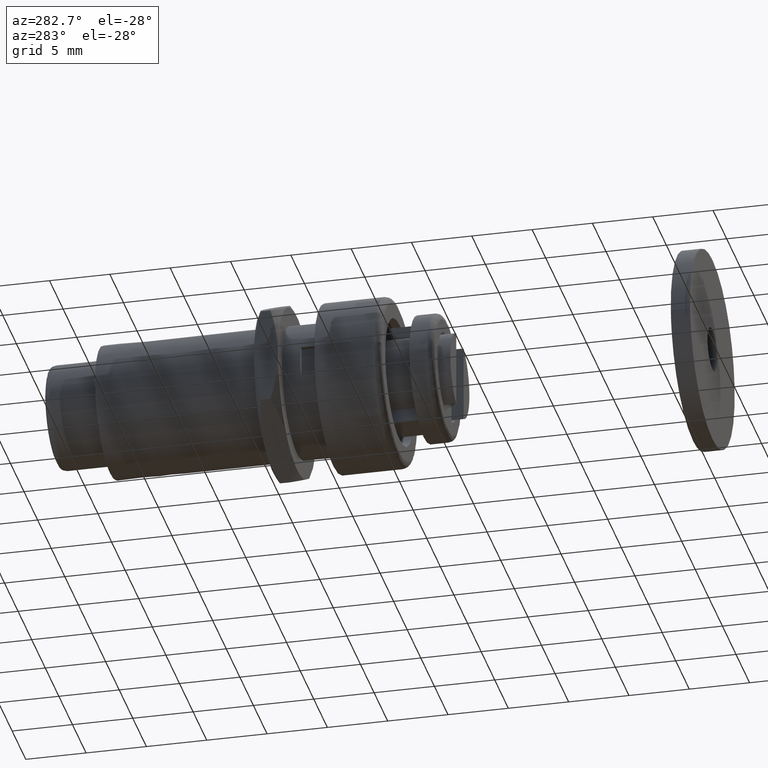
[diagram: clean part render]
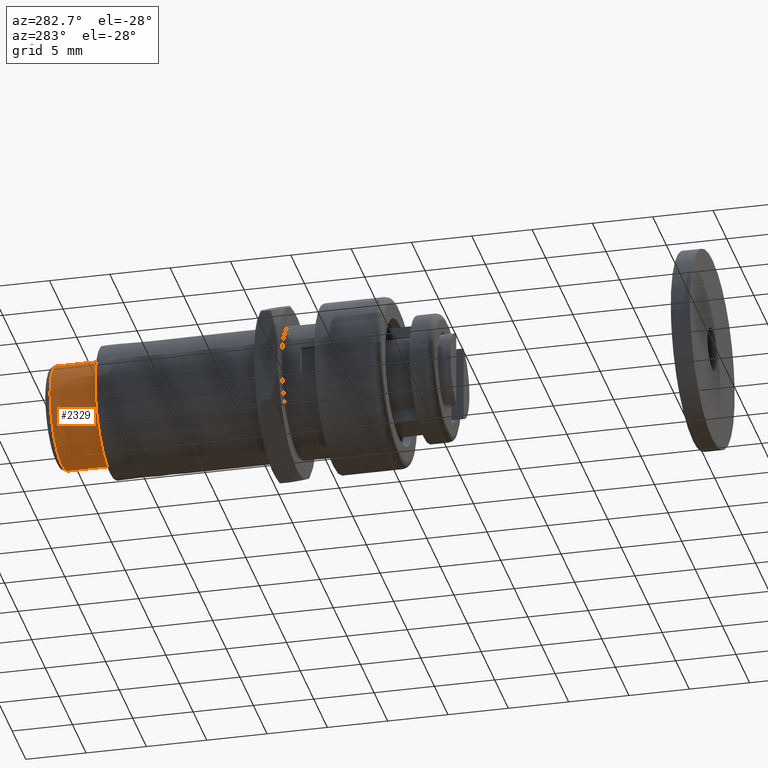
[diagram: same view with one face highlighted and labeled with its STEP entity id]
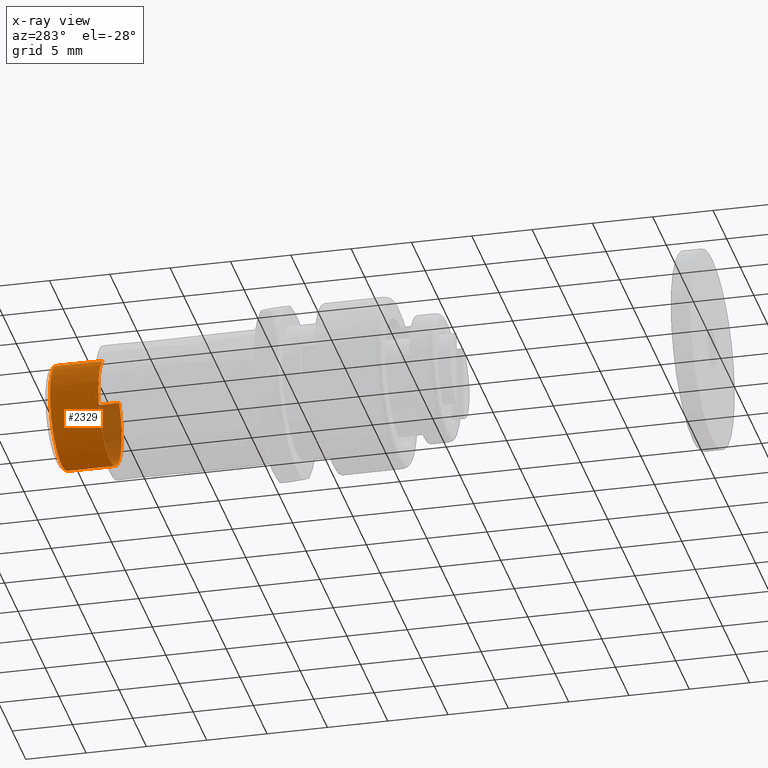
[diagram: x-ray of the same camera — body ghosted, the highlighted face saturated]
A machine part, auxiliary view. The second image highlights one B-rep face of the part: STEP entity #2329.
The next image is the same camera in x-ray: the body ghosted, the highlighted face saturated — about 16% of this face is hidden behind the body in this view.
In plain terms, the highlighted face is a freeform B-spline surface patch.
Its self-contained STEP definition (entity closure, byte-faithful):
#2195=CARTESIAN_POINT('',(-2.676814805085674,28.100000000129249,3.365217422289847));
#2196=CARTESIAN_POINT('',(-6.042032227375525,28.100000000129249,0.688402617204174));
#2197=CARTESIAN_POINT('',(-3.365217422289849,28.100000000129249,-2.676814805085675));
#2198=CARTESIAN_POINT('',(-0.688402617204176,28.100000000129249,-6.042032227375525));
#2199=CARTESIAN_POINT('',(2.676814805085674,28.100000000129249,-3.365217422289851));
#2200=CARTESIAN_POINT('',(6.042032227375525,28.100000000129249,-0.688402617204178));
#2201=CARTESIAN_POINT('',(3.365217422289849,28.100000000129249,2.676814805085672));
#2202=CARTESIAN_POINT('',(-2.676814805085674,23.897499999996459,3.365217422289847));
#2203=CARTESIAN_POINT('',(-6.042032227375525,23.897499999996448,0.688402617204174));
#2204=CARTESIAN_POINT('',(-3.365217422289849,23.897499999996459,-2.676814805085675));
#2205=CARTESIAN_POINT('',(-0.688402617204176,23.897499999996448,-6.042032227375525));
#2206=CARTESIAN_POINT('',(2.676814805085674,23.897499999996459,-3.365217422289851));
#2207=CARTESIAN_POINT('',(6.042032227375525,23.897499999996448,-0.688402617204178));
#2208=CARTESIAN_POINT('',(3.365217422289849,23.897499999996459,2.676814805085672));
#2216=(BOUNDED_SURFACE()B_SPLINE_SURFACE(2,1,((#2195,#2202),(#2196,#2203),(#2197,#2204),(#2198,#2205),(#2199,#2206),(#2200,#2207),(#2201,#2208)),.UNSPECIFIED.,.F.,.F.,.U.)B_SPLINE_SURFACE_WITH_KNOTS((3,2,2,3),(2,2),(0.0,7.124478243379981,14.248956486759960,21.373434730139952),(0.0,4.202500000132802),.UNSPECIFIED.)GEOMETRIC_REPRESENTATION_ITEM()RATIONAL_B_SPLINE_SURFACE(((1.0,1.0),(0.707106781186548,0.707106781186548),(1.0,1.0),(0.707106781186548,0.707106781186548),(1.0,1.0),(0.707106781186548,0.707106781186548),(1.0,1.0)))REPRESENTATION_ITEM('')SURFACE());
#2217=CARTESIAN_POINT('',(-2.676812412318736,28.000000000021359,3.365219325579831));
#2218=VERTEX_POINT('',#2217);
#2219=CARTESIAN_POINT('',(-4.300002999999999,28.000000000098868,2.444794E-015));
#2220=VERTEX_POINT('',#2219);
#2221=CARTESIAN_POINT('',(-2.676812412318736,28.000000000021352,3.365219325579832));
#2222=CARTESIAN_POINT('',(-4.300002999999990,28.000000000051184,2.074077116918344));
#2223=CARTESIAN_POINT('',(-4.300003000000000,28.000000000098876,2.444794E-015));
#2231=(BOUNDED_CURVE()B_SPLINE_CURVE(2,(#2221,#2222,#2223),.UNSPECIFIED.,.F.,.U.)B_SPLINE_CURVE_WITH_KNOTS((3,3),(0.607863769759587,0.749999999999999),.UNSPECIFIED.)CURVE()GEOMETRIC_REPRESENTATION_ITEM()RATIONAL_B_SPLINE_CURVE((0.856305653217627,0.833477048059502,0.999999999999998))REPRESENTATION_ITEM(''));
#2232=EDGE_CURVE('',#2218,#2220,#2231,.T.);
#2233=ORIENTED_EDGE('',*,*,#2232,.T.);
#2234=CARTESIAN_POINT('',(0.0,28.0,-4.300003000000002));
#2235=VERTEX_POINT('',#2234);
#2236=CARTESIAN_POINT('',(-4.300002999999999,28.000000000098868,2.444794E-015));
#2237=CARTESIAN_POINT('',(-4.300003000000009,28.0,-4.300003000000003));
#2238=CARTESIAN_POINT('',(0.0,28.0,-4.300003000000002));
#2246=(BOUNDED_CURVE()B_SPLINE_CURVE(2,(#2236,#2237,#2238),.UNSPECIFIED.,.F.,.U.)B_SPLINE_CURVE_WITH_KNOTS((3,3),(0.750000000000000,1.0),.UNSPECIFIED.)CURVE()GEOMETRIC_REPRESENTATION_ITEM()RATIONAL_B_SPLINE_CURVE((1.000000000000001,0.707106781186547,1.0))REPRESENTATION_ITEM(''));
#2247=EDGE_CURVE('',#2220,#2235,#2246,.T.);
#2248=ORIENTED_EDGE('',*,*,#2247,.T.);
#2249=CARTESIAN_POINT('',(4.271243026701816,28.000000000126089,-0.496496532576115));
#2250=VERTEX_POINT('',#2249);
#2251=CARTESIAN_POINT('',(0.0,28.0,-4.300003000000002));
#2252=CARTESIAN_POINT('',(3.829116984891961,27.999999999999996,-4.300003000000002));
#2253=CARTESIAN_POINT('',(4.271243026701816,28.000000000126093,-0.496496532576115));
#2261=(BOUNDED_CURVE()B_SPLINE_CURVE(2,(#2251,#2252,#2253),.UNSPECIFIED.,.F.,.U.)B_SPLINE_CURVE_WITH_KNOTS((3,3),(0.0,0.229999999993901),.UNSPECIFIED.)CURVE()GEOMETRIC_REPRESENTATION_ITEM()RATIONAL_B_SPLINE_CURVE((1.0,0.730538238698770,0.956886118178655))REPRESENTATION_ITEM(''));
#2262=EDGE_CURVE('',#2235,#2250,#2261,.T.);
#2263=ORIENTED_EDGE('',*,*,#2262,.T.);
#2264=CARTESIAN_POINT('',(3.365219330858836,27.999999999999829,2.676812405682101));
#2265=VERTEX_POINT('',#2264);
#2266=CARTESIAN_POINT('',(4.271243026701816,28.000000000126100,-0.496496532576115));
#2267=CARTESIAN_POINT('',(4.300003000000000,28.0,-0.249081238976146));
#2268=CARTESIAN_POINT('',(4.300003000000000,28.0,-1.653219E-015));
#2269=CARTESIAN_POINT('',(4.300003000000000,27.999999999999993,1.501626551461325));
#2270=CARTESIAN_POINT('',(3.365219330858836,27.999999999999829,2.676812405682101));
#2278=(BOUNDED_CURVE()B_SPLINE_CURVE(2,(#2266,#2267,#2268,#2269,#2270),.UNSPECIFIED.,.F.,.U.)B_SPLINE_CURVE_WITH_KNOTS((3,2,3),(0.229999999993901,0.250000000000000,0.357863769461057),.UNSPECIFIED.)CURVE()GEOMETRIC_REPRESENTATION_ITEM()RATIONAL_B_SPLINE_CURVE((0.956886118178655,0.976568542487778,1.0,0.873629733476795,0.856305653313521))REPRESENTATION_ITEM(''));
#2279=EDGE_CURVE('',#2250,#2265,#2278,.T.);
#2280=ORIENTED_EDGE('',*,*,#2279,.T.);
#2281=CARTESIAN_POINT('',(3.365219735611838,23.999999999999702,2.676811896836192));
#2282=VERTEX_POINT('',#2281);
#2283=CARTESIAN_POINT('',(3.365219330858836,27.999999999999829,2.676812405682101));
#2284=CARTESIAN_POINT('',(3.365219735611838,23.999999999999702,2.676811896836192));
#2285=QUASI_UNIFORM_CURVE('',1,(#2283,#2284),.UNSPECIFIED.,.F.,.U.);
#2286=EDGE_CURVE('',#2265,#2282,#2285,.T.);
#2287=ORIENTED_EDGE('',*,*,#2286,.T.);
#2288=CARTESIAN_POINT('',(0.0,23.999999999999702,-4.300003000000002));
#2289=VERTEX_POINT('',#2288);
#2290=CARTESIAN_POINT('',(0.0,23.999999999999702,-4.300003000000002));
#2291=CARTESIAN_POINT('',(4.300002999999999,23.999999999999702,-4.300003000000003));
#2292=CARTESIAN_POINT('',(4.300003000000000,23.999999999999702,-1.653219E-015));
#2293=CARTESIAN_POINT('',(4.300003000000001,23.999999999999698,1.501626186719671));
#2294=CARTESIAN_POINT('',(3.365219735611838,23.999999999999702,2.676811896836192));
#2302=(BOUNDED_CURVE()B_SPLINE_CURVE(2,(#2290,#2291,#2292,#2293,#2294),.UNSPECIFIED.,.F.,.U.)B_SPLINE_CURVE_WITH_KNOTS((3,2,3),(0.0,0.250000000000000,0.357863746572077),.UNSPECIFIED.)CURVE()GEOMETRIC_REPRESENTATION_ITEM()RATIONAL_B_SPLINE_CURVE((1.0,0.707106781186548,1.0,0.873629760292903,0.856305660665958))REPRESENTATION_ITEM(''));
#2303=EDGE_CURVE('',#2289,#2282,#2302,.T.);
#2304=ORIENTED_EDGE('',*,*,#2303,.F.);
#2305=CARTESIAN_POINT('',(-2.676812441141943,23.999999999999702,3.365219302652885));
#2306=VERTEX_POINT('',#2305);
#2307=CARTESIAN_POINT('',(-2.676812441141944,23.999999999999694,3.365219302652885));
#2308=CARTESIAN_POINT('',(-4.300003000000000,23.999999999999694,2.074077094219226));
#2309=CARTESIAN_POINT('',(-4.300003000000000,23.999999999999702,-1.653219E-015));
#2310=CARTESIAN_POINT('',(-4.300002999999999,23.999999999999702,-4.300003000000003));
#2311=CARTESIAN_POINT('',(0.0,23.999999999999702,-4.300003000000002));
#2319=(BOUNDED_CURVE()B_SPLINE_CURVE(2,(#2307,#2308,#2309,#2310,#2311),.UNSPECIFIED.,.F.,.U.)B_SPLINE_CURVE_WITH_KNOTS((3,2,3),(0.607863771056117,0.750000000000000,1.0),.UNSPECIFIED.)CURVE()GEOMETRIC_REPRESENTATION_ITEM()RATIONAL_B_SPLINE_CURVE((0.856305652801153,0.833477049578481,1.0,0.707106781186548,1.0))REPRESENTATION_ITEM(''));
#2320=EDGE_CURVE('',#2306,#2289,#2319,.T.);
#2321=ORIENTED_EDGE('',*,*,#2320,.F.);
#2322=CARTESIAN_POINT('',(-2.676812412318736,28.000000000021359,3.365219325579831));
#2323=CARTESIAN_POINT('',(-2.676812441141943,23.999999999999702,3.365219302652885));
#2324=QUASI_UNIFORM_CURVE('',1,(#2322,#2323),.UNSPECIFIED.,.F.,.U.);
#2325=EDGE_CURVE('',#2218,#2306,#2324,.T.);
#2326=ORIENTED_EDGE('',*,*,#2325,.F.);
#2327=EDGE_LOOP('',(#2233,#2248,#2263,#2280,#2287,#2304,#2321,#2326));
#2328=FACE_OUTER_BOUND('',#2327,.T.);
#2329=ADVANCED_FACE('',(#2328),#2216,.T.);